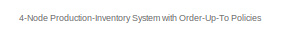
[diagram: root canvas - part 1/3, top left region]
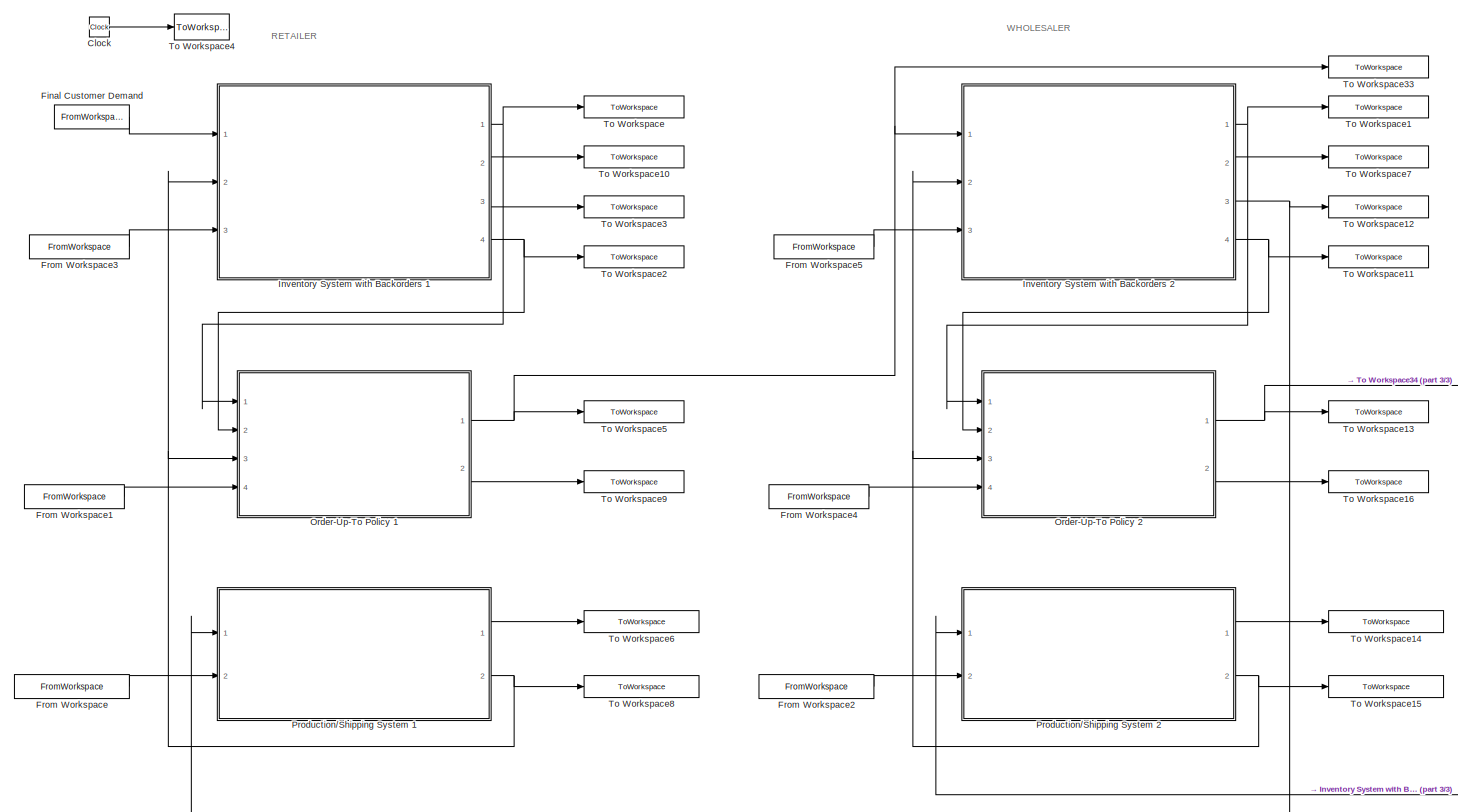
[diagram: root canvas - part 2/3, left side, full height]
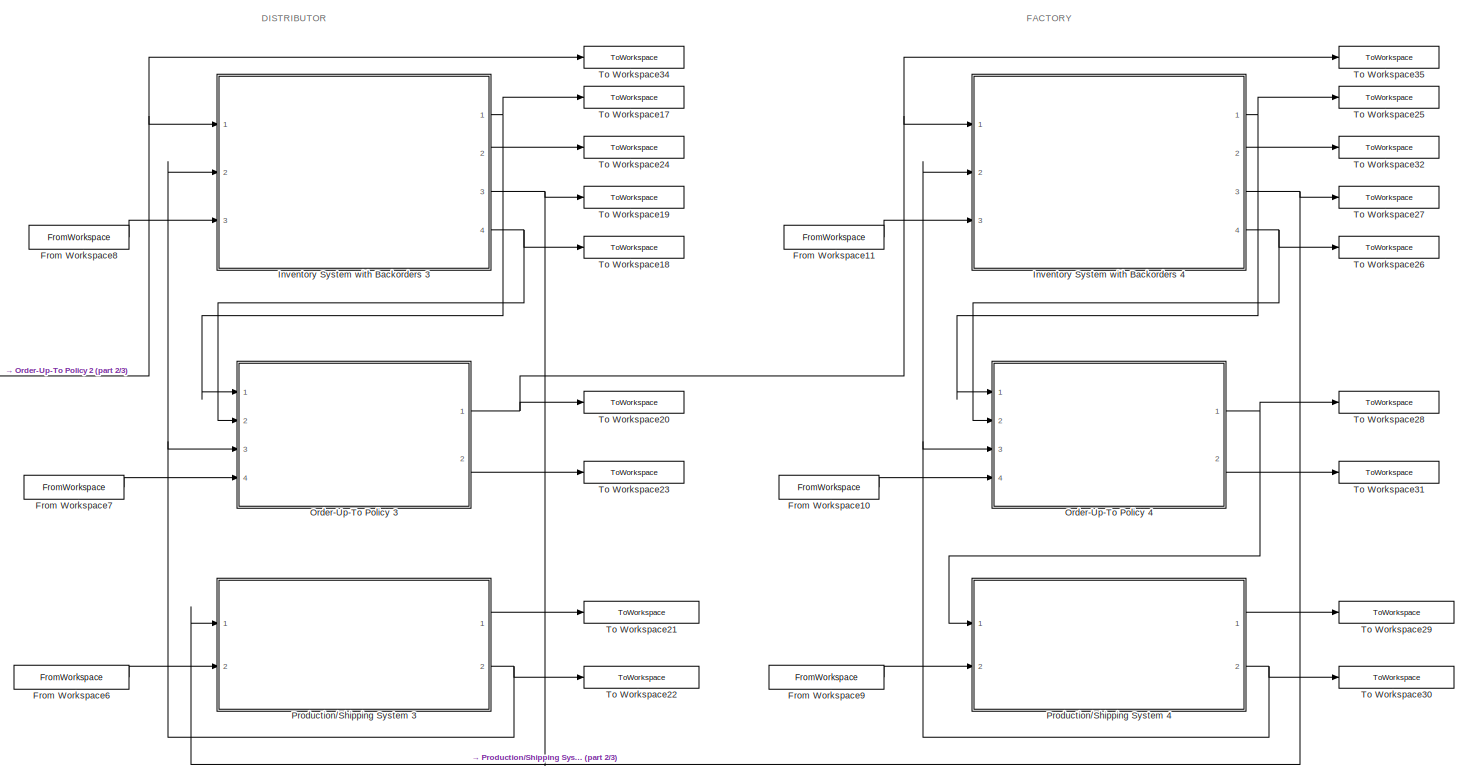
[diagram: root canvas - part 3/3, right side, full height]
MODEL slx_6b667d7b5af4
KIND model
CONFIG AbsTol = auto
CONFIG EnableMultiTasking = off
CONFIG FixedStep = auto
CONFIG MaxStep = auto
CONFIG MinStep = auto
CONFIG RelTol = 1e-3
CONFIG SampleTimeConstraint = Unconstrained
CONFIG SolverName = VariableStepAuto
CONFIG StartTime = 0.0
CONFIG StopTime = 100
BLOCK [Clock] Clock
BLOCK [FromWorkspace] Final Customer Demand
  SampleTime = Ts
  VariableName = inputs.d1
BLOCK [FromWorkspace] From Workspace
  SampleTime = Ts
  VariableName = inputs.s1_in_adj
BLOCK [FromWorkspace] From Workspace1
  SampleTime = Ts
  VariableName = inputs.q1_sl_adj
BLOCK [FromWorkspace] From Workspace10
  SampleTime = Ts
  VariableName = inputs.q4_sl_adj
BLOCK [FromWorkspace] From Workspace11
  SampleTime = Ts
  VariableName = inputs.q4_adj
BLOCK [FromWorkspace] From Workspace2
  SampleTime = Ts
  VariableName = inputs.s2_in_adj
BLOCK [FromWorkspace] From Workspace3
  SampleTime = Ts
  VariableName = inputs.q1_adj
BLOCK [FromWorkspace] From Workspace4
  SampleTime = Ts
  VariableName = inputs.q2_sl_adj
BLOCK [FromWorkspace] From Workspace5
  SampleTime = Ts
  VariableName = inputs.q2_adj
BLOCK [FromWorkspace] From Workspace6
  SampleTime = Ts
  VariableName = inputs.s3_in_adj
BLOCK [FromWorkspace] From Workspace7
  SampleTime = Ts
  VariableName = inputs.q3_sl_adj
BLOCK [FromWorkspace] From Workspace8
  SampleTime = Ts
  VariableName = inputs.q3_adj
BLOCK [FromWorkspace] From Workspace9
  SampleTime = Ts
  VariableName = inputs.s4_in_adj
BLOCK [SubSystem] Inventory System with Backorders 1
  Ports = [3, 4]
  ReferencedSubsystem = inv_sys_with_backorders
  RequestExecContextInheritance = off
  b0 = 0
  q0 = q1.params.q_init
BLOCK [SubSystem] Inventory System with Backorders 2
  Ports = [3, 4]
  ReferencedSubsystem = inv_sys_with_backorders
  RequestExecContextInheritance = off
  b0 = 0
  q0 = q2.params.q_init
BLOCK [SubSystem] Inventory System with Backorders 3
  Ports = [3, 4]
  ReferencedSubsystem = inv_sys_with_backorders
  RequestExecContextInheritance = off
  b0 = 0
  q0 = q3.params.q_init
BLOCK [SubSystem] Inventory System with Backorders 4
  Ports = [3, 4]
  ReferencedSubsystem = inv_sys_with_backorders
  RequestExecContextInheritance = off
  b0 = 0
  q0 = q4.params.q_init
BLOCK [SubSystem] Order-Up-To Policy 1
  Kq = q1.params.Kq
  Kq_sl = q1.params.Kq_sl
  Ports = [4, 2]
  ReferencedSubsystem = order_up_to_policy
  RequestExecContextInheritance = off
  moq = q1.params.moq
  q_o_init = q1.params.q_o_init
  q_sl_init = q1.params.q_sl_init
  q_sl_sp = q1.params.q_sl_sp
  q_sp = q1.params.q_sp
BLOCK [SubSystem] Order-Up-To Policy 2
  Kq = q2.params.Kq
  Kq_sl = q2.params.Kq_sl
  Ports = [4, 2]
  ReferencedSubsystem = order_up_to_policy
  RequestExecContextInheritance = off
  moq = q2.params.moq
  q_o_init = q2.params.q_o_init
  q_sl_init = q2.params.q_sl_init
  q_sl_sp = q2.params.q_sl_sp
  q_sp = q2.params.q_sp
BLOCK [SubSystem] Order-Up-To Policy 3
  Kq = q3.params.Kq
  Kq_sl = q3.params.Kq_sl
  Ports = [4, 2]
  ReferencedSubsystem = order_up_to_policy
  RequestExecContextInheritance = off
  moq = q3.params.moq
  q_o_init = q3.params.q_o_init
  q_sl_init = q3.params.q_sl_init
  q_sl_sp = q3.params.q_sl_sp
  q_sp = q3.params.q_sp
BLOCK [SubSystem] Order-Up-To Policy 4
  Kq = q4.params.Kq
  Kq_sl = q4.params.Kq
  Ports = [4, 2]
  ReferencedSubsystem = order_up_to_policy
  RequestExecContextInheritance = off
  moq = q4.params.moq
  q_o_init = q4.params.q_o_init
  q_sl_init = q4.params.q_sl_init
  q_sl_sp = q4.params.q_sl_sp
  q_sp = q4.params.q_sp
BLOCK [SubSystem] Production//Shipping System 1
  Ports = [2, 2]
  ReferencedSubsystem = prod_trans_sys
  RequestExecContextInheritance = off
  q_sl_init = q1.params.q_sl_init
  t_delay = q1.params.t_delay
BLOCK [SubSystem] Production//Shipping System 2
  Ports = [2, 2]
  ReferencedSubsystem = prod_trans_sys
  RequestExecContextInheritance = off
  q_sl_init = q2.params.q_sl_init
  t_delay = q2.params.t_delay
BLOCK [SubSystem] Production//Shipping System 3
  Ports = [2, 2]
  ReferencedSubsystem = prod_trans_sys
  RequestExecContextInheritance = off
  q_sl_init = q3.params.q_sl_init
  t_delay = q3.params.t_delay
BLOCK [SubSystem] Production//Shipping System 4
  Ports = [2, 2]
  ReferencedSubsystem = prod_trans_sys
  RequestExecContextInheritance = off
  q_sl_init = q3.params.q_sl_init
  t_delay = q4.params.t_delay
BLOCK [ToWorkspace] To Workspace
  FixptAsFi = on
  MaxDataPoints = inf
  Ports = [1]
  SampleTime = -1
  VariableName = d1_back
BLOCK [ToWorkspace] To Workspace1
  FixptAsFi = on
  MaxDataPoints = inf
  Ports = [1]
  SampleTime = -1
  VariableName = d2_back
BLOCK [ToWorkspace] To Workspace10
  FixptAsFi = on
  MaxDataPoints = inf
  Ports = [1]
  SampleTime = -1
  VariableName = q1_open
BLOCK [ToWorkspace] To Workspace11
  FixptAsFi = on
  MaxDataPoints = inf
  Ports = [1]
  SampleTime = -1
  VariableName = q2_close
BLOCK [ToWorkspace] To Workspace12
  FixptAsFi = on
  MaxDataPoints = inf
  Ports = [1]
  SampleTime = -1
  VariableName = s2_out
BLOCK [ToWorkspace] To Workspace13
  FixptAsFi = on
  MaxDataPoints = inf
  Ports = [1]
  SampleTime = -1
  VariableName = o2
BLOCK [ToWorkspace] To Workspace14
  FixptAsFi = on
  MaxDataPoints = inf
  Ports = [1]
  SampleTime = -1
  VariableName = q2_transit
BLOCK [ToWorkspace] To Workspace15
  FixptAsFi = on
  MaxDataPoints = inf
  Ports = [1]
  SampleTime = -1
  VariableName = s2_in
BLOCK [ToWorkspace] To Workspace16
  FixptAsFi = on
  MaxDataPoints = inf
  Ports = [1]
  SampleTime = -1
  VariableName = q2_sl_est
BLOCK [ToWorkspace] To Workspace17
  FixptAsFi = on
  MaxDataPoints = inf
  Ports = [1]
  SampleTime = -1
  VariableName = d3_back
BLOCK [ToWorkspace] To Workspace18
  FixptAsFi = on
  MaxDataPoints = inf
  Ports = [1]
  SampleTime = -1
  VariableName = q3_close
BLOCK [ToWorkspace] To Workspace19
  FixptAsFi = on
  MaxDataPoints = inf
  Ports = [1]
  SampleTime = -1
  VariableName = s3_out
BLOCK [ToWorkspace] To Workspace2
  FixptAsFi = on
  MaxDataPoints = inf
  Ports = [1]
  SampleTime = -1
  VariableName = q1_close
BLOCK [ToWorkspace] To Workspace20
  FixptAsFi = on
  MaxDataPoints = inf
  Ports = [1]
  SampleTime = -1
  VariableName = o3
BLOCK [ToWorkspace] To Workspace21
  FixptAsFi = on
  MaxDataPoints = inf
  Ports = [1]
  SampleTime = -1
  VariableName = q3_transit
BLOCK [ToWorkspace] To Workspace22
  FixptAsFi = on
  MaxDataPoints = inf
  Ports = [1]
  SampleTime = -1
  VariableName = s3_in
BLOCK [ToWorkspace] To Workspace23
  FixptAsFi = on
  MaxDataPoints = inf
  Ports = [1]
  SampleTime = -1
  VariableName = q3_sl_est
BLOCK [ToWorkspace] To Workspace24
  FixptAsFi = on
  MaxDataPoints = inf
  Ports = [1]
  SampleTime = -1
  VariableName = q3_open
BLOCK [ToWorkspace] To Workspace25
  FixptAsFi = on
  MaxDataPoints = inf
  Ports = [1]
  SampleTime = -1
  VariableName = d4_back
BLOCK [ToWorkspace] To Workspace26
  FixptAsFi = on
  MaxDataPoints = inf
  Ports = [1]
  SampleTime = -1
  VariableName = q4_close
BLOCK [ToWorkspace] To Workspace27
  FixptAsFi = on
  MaxDataPoints = inf
  Ports = [1]
  SampleTime = -1
  VariableName = s4_out
BLOCK [ToWorkspace] To Workspace28
  FixptAsFi = on
  MaxDataPoints = inf
  Ports = [1]
  SampleTime = -1
  VariableName = o4
BLOCK [ToWorkspace] To Workspace29
  FixptAsFi = on
  MaxDataPoints = inf
  Ports = [1]
  SampleTime = -1
  VariableName = q4_transit
BLOCK [ToWorkspace] To Workspace3
  FixptAsFi = on
  MaxDataPoints = inf
  Ports = [1]
  SampleTime = -1
  VariableName = s1_out
BLOCK [ToWorkspace] To Workspace30
  FixptAsFi = on
  MaxDataPoints = inf
  Ports = [1]
  SampleTime = -1
  VariableName = s4_in
BLOCK [ToWorkspace] To Workspace31
  FixptAsFi = on
  MaxDataPoints = inf
  Ports = [1]
  SampleTime = -1
  VariableName = q4_sl_est
BLOCK [ToWorkspace] To Workspace32
  FixptAsFi = on
  MaxDataPoints = inf
  Ports = [1]
  SampleTime = -1
  VariableName = q4_open
BLOCK [ToWorkspace] To Workspace33
  FixptAsFi = on
  MaxDataPoints = inf
  Ports = [1]
  SampleTime = -1
  VariableName = d2
BLOCK [ToWorkspace] To Workspace34
  FixptAsFi = on
  MaxDataPoints = inf
  Ports = [1]
  SampleTime = -1
  VariableName = d3
BLOCK [ToWorkspace] To Workspace35
  FixptAsFi = on
  MaxDataPoints = inf
  Ports = [1]
  SampleTime = -1
  VariableName = d4
BLOCK [ToWorkspace] To Workspace4
  FixptAsFi = on
  MaxDataPoints = inf
  Ports = [1]
  SampleTime = -1
  VariableName = t
BLOCK [ToWorkspace] To Workspace5
  FixptAsFi = on
  MaxDataPoints = inf
  Ports = [1]
  SampleTime = -1
  VariableName = o1
BLOCK [ToWorkspace] To Workspace6
  FixptAsFi = on
  MaxDataPoints = inf
  Ports = [1]
  SampleTime = -1
  VariableName = q1_transit
BLOCK [ToWorkspace] To Workspace7
  FixptAsFi = on
  MaxDataPoints = inf
  Ports = [1]
  SampleTime = -1
  VariableName = q2_open
BLOCK [ToWorkspace] To Workspace8
  FixptAsFi = on
  MaxDataPoints = inf
  Ports = [1]
  SampleTime = -1
  VariableName = s1_in
BLOCK [ToWorkspace] To Workspace9
  FixptAsFi = on
  MaxDataPoints = inf
  Ports = [1]
  SampleTime = -1
  VariableName = q1_sl_est
ANNOTATION (root): DISTRIBUTOR
ANNOTATION (root): FACTORY
ANNOTATION (root): RETAILER
ANNOTATION (root): WHOLESALER
ANNOTATION (root): 4-Node Production-Inventory System with Order-Up-To Policies
LINE Clock:1 -> To Workspace4:1
LINE Final Customer Demand:1 -> Inventory System with Backorders 1:1
LINE From Workspace10:1 -> Order-Up-To Policy 4:4
LINE From Workspace11:1 -> Inventory System with Backorders 4:3
LINE From Workspace1:1 -> Order-Up-To Policy 1:4
LINE From Workspace2:1 -> Production//Shipping System 2:2
LINE From Workspace3:1 -> Inventory System with Backorders 1:3
LINE From Workspace4:1 -> Order-Up-To Policy 2:4
LINE From Workspace5:1 -> Inventory System with Backorders 2:3
LINE From Workspace6:1 -> Production//Shipping System 3:2
LINE From Workspace7:1 -> Order-Up-To Policy 3:4
LINE From Workspace8:1 -> Inventory System with Backorders 3:3
LINE From Workspace9:1 -> Production//Shipping System 4:2
LINE From Workspace:1 -> Production//Shipping System 1:2
NET Inventory System with Backorders 1:1 -> Order-Up-To Policy 1:1, To Workspace:1
LINE Inventory System with Backorders 1:2 -> To Workspace10:1
LINE Inventory System with Backorders 1:3 -> To Workspace3:1
NET Inventory System with Backorders 1:4 -> Order-Up-To Policy 1:2, To Workspace2:1
NET Inventory System with Backorders 2:1 -> Order-Up-To Policy 2:1, To Workspace1:1
LINE Inventory System with Backorders 2:2 -> To Workspace7:1
NET Inventory System with Backorders 2:3 -> Production//Shipping System 1:1, To Workspace12:1
NET Inventory System with Backorders 2:4 -> Order-Up-To Policy 2:2, To Workspace11:1
NET Inventory System with Backorders 3:1 -> Order-Up-To Policy 3:1, To Workspace17:1
LINE Inventory System with Backorders 3:2 -> To Workspace24:1
NET Inventory System with Backorders 3:3 -> Production//Shipping System 2:1, To Workspace19:1
NET Inventory System with Backorders 3:4 -> Order-Up-To Policy 3:2, To Workspace18:1
NET Inventory System with Backorders 4:1 -> Order-Up-To Policy 4:1, To Workspace25:1
LINE Inventory System with Backorders 4:2 -> To Workspace32:1
NET Inventory System with Backorders 4:3 -> Production//Shipping System 3:1, To Workspace27:1
NET Inventory System with Backorders 4:4 -> Order-Up-To Policy 4:2, To Workspace26:1
NET Order-Up-To Policy 1:1 -> Inventory System with Backorders 2:1, To Workspace33:1, To Workspace5:1
LINE Order-Up-To Policy 1:2 -> To Workspace9:1
NET Order-Up-To Policy 2:1 -> Inventory System with Backorders 3:1, To Workspace13:1, To Workspace34:1
LINE Order-Up-To Policy 2:2 -> To Workspace16:1
NET Order-Up-To Policy 3:1 -> Inventory System with Backorders 4:1, To Workspace20:1, To Workspace35:1
LINE Order-Up-To Policy 3:2 -> To Workspace23:1
NET Order-Up-To Policy 4:1 -> Production//Shipping System 4:1, To Workspace28:1
LINE Order-Up-To Policy 4:2 -> To Workspace31:1
LINE Production//Shipping System 1:1 -> To Workspace6:1
NET Production//Shipping System 1:2 -> Inventory System with Backorders 1:2, Order-Up-To Policy 1:3, To Workspace8:1
LINE Production//Shipping System 2:1 -> To Workspace14:1
NET Production//Shipping System 2:2 -> Inventory System with Backorders 2:2, Order-Up-To Policy 2:3, To Workspace15:1
LINE Production//Shipping System 3:1 -> To Workspace21:1
NET Production//Shipping System 3:2 -> Inventory System with Backorders 3:2, Order-Up-To Policy 3:3, To Workspace22:1
LINE Production//Shipping System 4:1 -> To Workspace29:1
NET Production//Shipping System 4:2 -> Inventory System with Backorders 4:2, Order-Up-To Policy 4:3, To Workspace30:1
note: NET lines group one-source signal fan-out (src -> all destinations, sorted); 1:1 wires keep LINE
